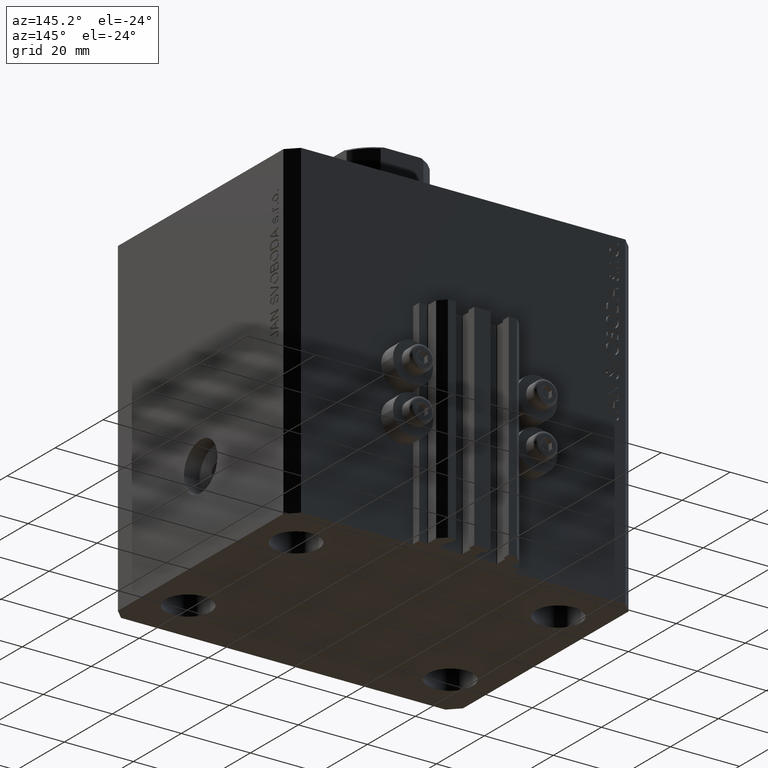
[diagram: clean part render]
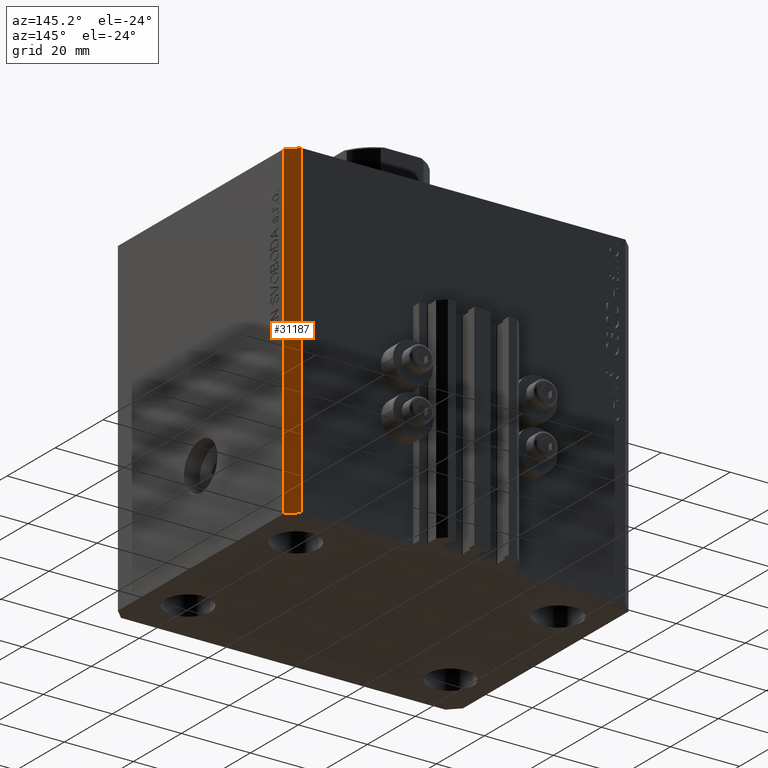
[diagram: same view with one face highlighted and labeled with its STEP entity id]
A machine part, auxiliary view. The second image highlights one B-rep face of the part: STEP entity #31187.
In plain terms, the highlighted planar face has unit normal (0.7071, 0.7071, 0).
Its self-contained STEP definition (entity closure, byte-faithful):
#23 = PLANE ( 'NONE',  #44689 ) ;
#277 = VERTEX_POINT ( 'NONE', #5666 ) ;
#2366 = CARTESIAN_POINT ( 'NONE',  ( 50.00000000000051870, 34.49999999999995026, -95.00000000000000000 ) ) ;
#3269 = LINE ( 'NONE', #46717, #9669 ) ;
#5641 = EDGE_CURVE ( 'NONE', #14938, #16496, #3269, .T. ) ;
#5666 = CARTESIAN_POINT ( 'NONE',  ( 47.00000000000056843, 37.49999999999999289, -95.00000000000000000 ) ) ;
#5728 = LINE ( 'NONE', #16709, #9188 ) ;
#5942 = ORIENTED_EDGE ( 'NONE', *, *, #18628, .T. ) ;
#6377 = DIRECTION ( 'NONE',  ( 0.000000000000000000, 0.000000000000000000, 1.000000000000000000 ) ) ;
#9188 = VECTOR ( 'NONE', #13578, 1000.000000000000114 ) ;
#9544 = CARTESIAN_POINT ( 'NONE',  ( 50.00000000000051870, 34.49999999999995026, 0.000000000000000000 ) ) ;
#9669 = VECTOR ( 'NONE', #28575, 1000.000000000000000 ) ;
#9927 = LINE ( 'NONE', #39773, #10779 ) ;
#10383 = DIRECTION ( 'NONE',  ( -0.7071067811865361374, 0.7071067811865588970, 0.000000000000000000 ) ) ;
#10779 = VECTOR ( 'NONE', #10383, 1000.000000000000114 ) ;
#10808 = VECTOR ( 'NONE', #6377, 1000.000000000000000 ) ;
#11479 = VERTEX_POINT ( 'NONE', #26006 ) ;
#13578 = DIRECTION ( 'NONE',  ( -0.7071067811865361374, 0.7071067811865588970, 0.000000000000000000 ) ) ;
#14938 = VERTEX_POINT ( 'NONE', #2366 ) ;
#15274 = FACE_OUTER_BOUND ( 'NONE', #43913, .T. ) ;
#16496 = VERTEX_POINT ( 'NONE', #9544 ) ;
#16709 = CARTESIAN_POINT ( 'NONE',  ( 50.00000000000051870, 34.49999999999995026, 0.000000000000000000 ) ) ;
#18628 = EDGE_CURVE ( 'NONE', #277, #11479, #24757, .T. ) ;
#18756 = ORIENTED_EDGE ( 'NONE', *, *, #26277, .T. ) ;
#20205 = ORIENTED_EDGE ( 'NONE', *, *, #46217, .F. ) ;
#21979 = CARTESIAN_POINT ( 'NONE',  ( 50.00000000000051870, 34.49999999999995026, -95.00000000000000000 ) ) ;
#24757 = LINE ( 'NONE', #43368, #10808 ) ;
#25340 = DIRECTION ( 'NONE',  ( -0.7071067811865360264, 0.7071067811865588970, 0.000000000000000000 ) ) ;
#26006 = CARTESIAN_POINT ( 'NONE',  ( 47.00000000000056843, 37.49999999999999289, 0.000000000000000000 ) ) ;
#26277 = EDGE_CURVE ( 'NONE', #14938, #277, #9927, .T. ) ;
#28575 = DIRECTION ( 'NONE',  ( 0.000000000000000000, 0.000000000000000000, 1.000000000000000000 ) ) ;
#31187 = ADVANCED_FACE ( 'NONE', ( #15274 ), #23, .T. ) ;
#33210 = DIRECTION ( 'NONE',  ( 0.7071067811865590080, 0.7071067811865361374, -0.000000000000000000 ) ) ;
#33577 = ORIENTED_EDGE ( 'NONE', *, *, #5641, .F. ) ;
#39773 = CARTESIAN_POINT ( 'NONE',  ( 50.00000000000051870, 34.49999999999995026, -95.00000000000000000 ) ) ;
#43368 = CARTESIAN_POINT ( 'NONE',  ( 47.00000000000056843, 37.49999999999999289, -95.00000000000000000 ) ) ;
#43913 = EDGE_LOOP ( 'NONE', ( #20205, #33577, #18756, #5942 ) ) ;
#44689 = AXIS2_PLACEMENT_3D ( 'NONE', #21979, #33210, #25340 ) ;
#46217 = EDGE_CURVE ( 'NONE', #16496, #11479, #5728, .T. ) ;
#46717 = CARTESIAN_POINT ( 'NONE',  ( 50.00000000000051870, 34.49999999999995026, -95.00000000000000000 ) ) ;